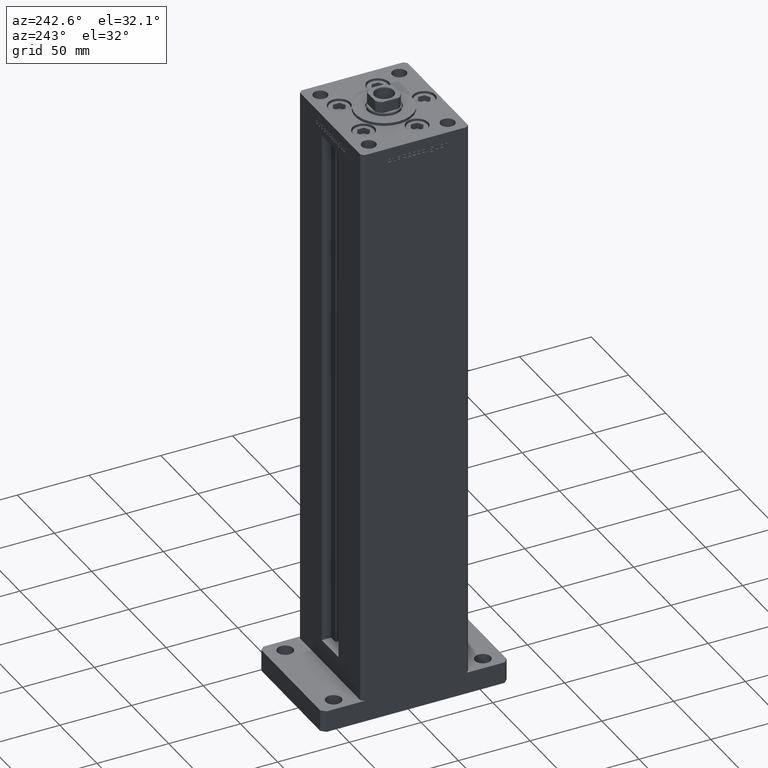
[diagram: clean part render]
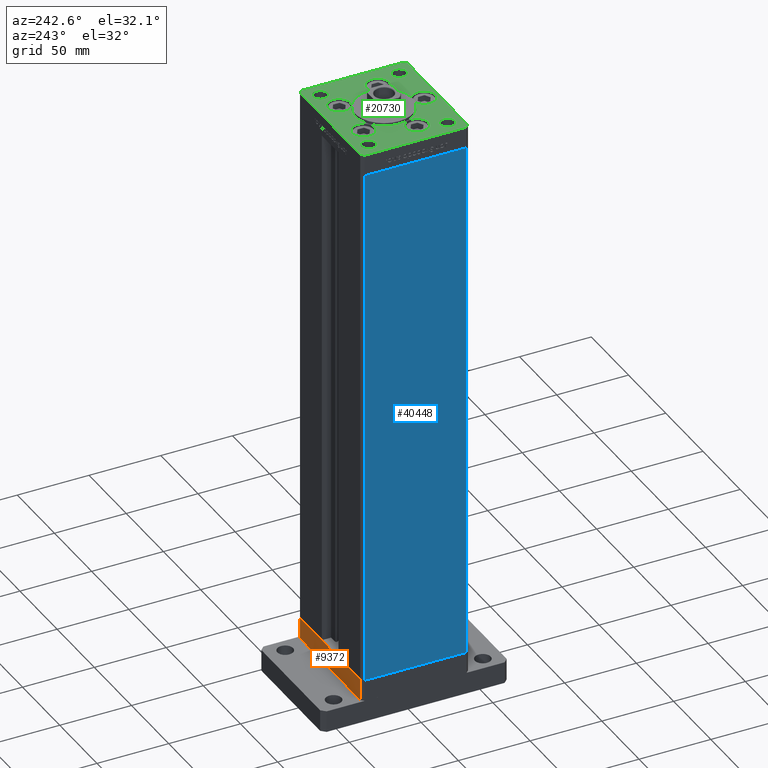
[diagram: same view with three faces highlighted in distinct colors, each labeled with its STEP entity id]
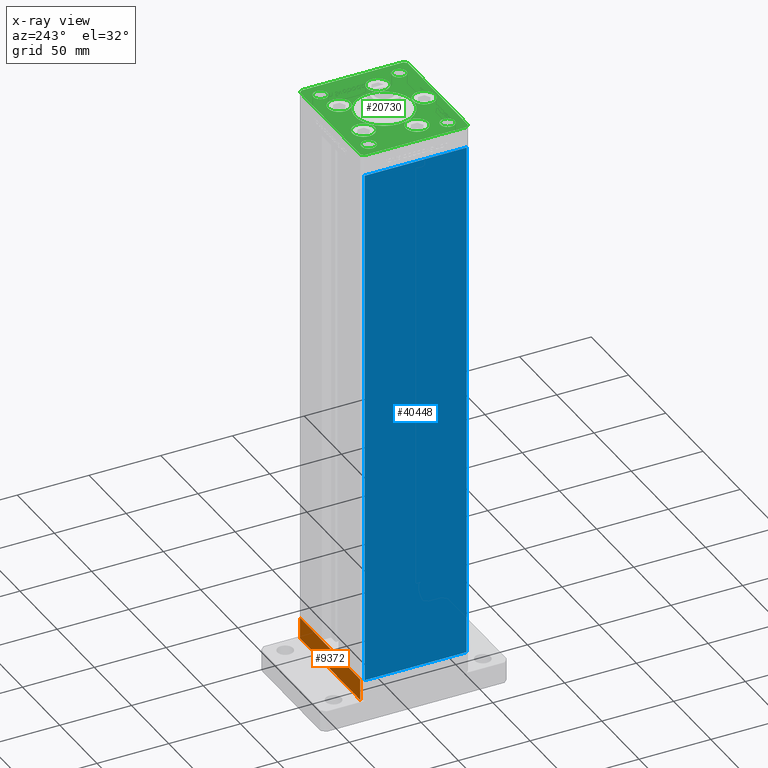
[diagram: x-ray of the same camera — body ghosted, the three highlighted faces saturated]
A machine part, auxiliary view with three faces highlighted in distinct colors.
The next image is the same camera in x-ray (body ghosted, the three faces saturated) — at least one of them is partly hidden behind the body in this view.
Their STEP definitions:

[orange] entity #9372 — the highlighted planar face has unit normal (0, 1, 0).
#1192 = DIRECTION ( 'NONE',  ( -1.000000000000000000, -3.426614273534436165E-16, 0.000000000000000000 ) ) ;
#2602 = EDGE_CURVE ( 'NONE', #24854, #33634, #38947, .T. ) ;
#3038 = ORIENTED_EDGE ( 'NONE', *, *, #2602, .T. ) ;
#5303 = CARTESIAN_POINT ( 'NONE',  ( -40.50000000000000711, 37.49999999999997868, 0.000000000000000000 ) ) ;
#8861 = LINE ( 'NONE', #17269, #35515 ) ;
#9372 = ADVANCED_FACE ( 'NONE', ( #9737 ), #26295, .T. ) ;
#9737 = FACE_OUTER_BOUND ( 'NONE', #28878, .T. ) ;
#10970 = EDGE_CURVE ( 'NONE', #33634, #48000, #8861, .T. ) ;
#12358 = CARTESIAN_POINT ( 'NONE',  ( -40.50000000000000711, 37.49999999999997868, -15.00000000000000000 ) ) ;
#12738 = CARTESIAN_POINT ( 'NONE',  ( 40.49999999999991473, 37.50000000000000711, 0.000000000000000000 ) ) ;
#13945 = EDGE_CURVE ( 'NONE', #24854, #21960, #18647, .T. ) ;
#16267 = ORIENTED_EDGE ( 'NONE', *, *, #45103, .F. ) ;
#17269 = CARTESIAN_POINT ( 'NONE',  ( -40.50000000000000711, 37.49999999999997868, -15.00000000000000000 ) ) ;
#18647 = LINE ( 'NONE', #34415, #31278 ) ;
#18718 = CARTESIAN_POINT ( 'NONE',  ( 40.49999999999991473, 37.50000000000000711, 0.000000000000000000 ) ) ;
#21960 = VERTEX_POINT ( 'NONE', #18718 ) ;
#23282 = CARTESIAN_POINT ( 'NONE',  ( 40.49999999999991473, 37.50000000000000711, -15.00000000000000000 ) ) ;
#24854 = VERTEX_POINT ( 'NONE', #33017 ) ;
#25817 = VECTOR ( 'NONE', #1192, 1000.000000000000000 ) ;
#26295 = PLANE ( 'NONE',  #47629 ) ;
#26431 = CARTESIAN_POINT ( 'NONE',  ( 40.49999999999991473, 37.50000000000000711, -15.00000000000000000 ) ) ;
#27367 = DIRECTION ( 'NONE',  ( -3.426614273534436165E-16, 1.000000000000000000, 0.000000000000000000 ) ) ;
#28878 = EDGE_LOOP ( 'NONE', ( #16267, #45212, #3038, #33238 ) ) ;
#30880 = DIRECTION ( 'NONE',  ( 0.000000000000000000, 0.000000000000000000, 1.000000000000000000 ) ) ;
#31278 = VECTOR ( 'NONE', #30880, 1000.000000000000000 ) ;
#31718 = DIRECTION ( 'NONE',  ( -1.000000000000000000, -3.426614273534436165E-16, 0.000000000000000000 ) ) ;
#33017 = CARTESIAN_POINT ( 'NONE',  ( 40.49999999999991473, 37.50000000000000711, -15.00000000000000000 ) ) ;
#33071 = VECTOR ( 'NONE', #33920, 1000.000000000000000 ) ;
#33121 = LINE ( 'NONE', #12738, #33071 ) ;
#33238 = ORIENTED_EDGE ( 'NONE', *, *, #10970, .T. ) ;
#33583 = DIRECTION ( 'NONE',  ( 0.000000000000000000, 0.000000000000000000, 1.000000000000000000 ) ) ;
#33634 = VERTEX_POINT ( 'NONE', #12358 ) ;
#33920 = DIRECTION ( 'NONE',  ( -1.000000000000000000, -3.426614273534436165E-16, 0.000000000000000000 ) ) ;
#34415 = CARTESIAN_POINT ( 'NONE',  ( 40.49999999999991473, 37.50000000000000711, -15.00000000000000000 ) ) ;
#35515 = VECTOR ( 'NONE', #33583, 1000.000000000000000 ) ;
#38947 = LINE ( 'NONE', #26431, #25817 ) ;
#45103 = EDGE_CURVE ( 'NONE', #21960, #48000, #33121, .T. ) ;
#45212 = ORIENTED_EDGE ( 'NONE', *, *, #13945, .F. ) ;
#47629 = AXIS2_PLACEMENT_3D ( 'NONE', #23282, #27367, #31718 ) ;
#48000 = VERTEX_POINT ( 'NONE', #5303 ) ;

[blue] entity #40448 — the highlighted planar face has unit normal (1, 0, 0).
#121 = VECTOR ( 'NONE', #31527, 1000.000000000000000 ) ;
#2271 = DIRECTION ( 'NONE',  ( -2.931927001650941360E-16, 1.000000000000000000, 0.000000000000000000 ) ) ;
#5112 = VECTOR ( 'NONE', #33444, 1000.000000000000000 ) ;
#5169 = ORIENTED_EDGE ( 'NONE', *, *, #10445, .T. ) ;
#5365 = LINE ( 'NONE', #37968, #13023 ) ;
#6359 = CARTESIAN_POINT ( 'NONE',  ( -42.50000000000000711, 35.50000000000001421, 368.5000000000000000 ) ) ;
#10422 = DIRECTION ( 'NONE',  ( 1.000000000000000000, 2.931927001650941360E-16, -0.000000000000000000 ) ) ;
#10445 = EDGE_CURVE ( 'NONE', #43367, #37976, #12528, .T. ) ;
#12528 = LINE ( 'NONE', #29088, #5112 ) ;
#13023 = VECTOR ( 'NONE', #29809, 1000.000000000000000 ) ;
#13440 = ORIENTED_EDGE ( 'NONE', *, *, #41231, .F. ) ;
#15358 = CARTESIAN_POINT ( 'NONE',  ( -42.49999999999998579, -35.50000000000000711, 368.5000000000000000 ) ) ;
#17939 = LINE ( 'NONE', #33449, #23255 ) ;
#21398 = CARTESIAN_POINT ( 'NONE',  ( -42.50000000000000711, 35.50000000000001421, 0.000000000000000000 ) ) ;
#21468 = DIRECTION ( 'NONE',  ( -0.000000000000000000, -0.000000000000000000, -1.000000000000000000 ) ) ;
#23255 = VECTOR ( 'NONE', #21468, 1000.000000000000000 ) ;
#24601 = ORIENTED_EDGE ( 'NONE', *, *, #45727, .T. ) ;
#25477 = ORIENTED_EDGE ( 'NONE', *, *, #31482, .F. ) ;
#27459 = EDGE_LOOP ( 'NONE', ( #5169, #25477, #13440, #24601 ) ) ;
#28857 = CARTESIAN_POINT ( 'NONE',  ( -42.49999999999998579, -35.50000000000000711, 0.000000000000000000 ) ) ;
#29088 = CARTESIAN_POINT ( 'NONE',  ( -42.50000000000000711, 35.50000000000001421, 0.000000000000000000 ) ) ;
#29809 = DIRECTION ( 'NONE',  ( 2.931927001650941360E-16, -1.000000000000000000, 0.000000000000000000 ) ) ;
#30804 = PLANE ( 'NONE',  #35522 ) ;
#31482 = EDGE_CURVE ( 'NONE', #46213, #37976, #17939, .T. ) ;
#31527 = DIRECTION ( 'NONE',  ( -0.000000000000000000, -0.000000000000000000, -1.000000000000000000 ) ) ;
#31795 = CARTESIAN_POINT ( 'NONE',  ( -42.50000000000000711, 35.50000000000001421, 368.5000000000000000 ) ) ;
#33444 = DIRECTION ( 'NONE',  ( 2.931927001650941360E-16, -1.000000000000000000, 0.000000000000000000 ) ) ;
#33449 = CARTESIAN_POINT ( 'NONE',  ( -42.49999999999998579, -35.50000000000000711, 368.5000000000000000 ) ) ;
#33679 = VERTEX_POINT ( 'NONE', #36020 ) ;
#35522 = AXIS2_PLACEMENT_3D ( 'NONE', #6359, #10422, #2271 ) ;
#35884 = LINE ( 'NONE', #31795, #121 ) ;
#36020 = CARTESIAN_POINT ( 'NONE',  ( -42.50000000000000711, 35.50000000000001421, 368.5000000000000000 ) ) ;
#37968 = CARTESIAN_POINT ( 'NONE',  ( -42.50000000000000711, 35.50000000000001421, 368.5000000000000000 ) ) ;
#37976 = VERTEX_POINT ( 'NONE', #28857 ) ;
#40448 = ADVANCED_FACE ( 'NONE', ( #42790 ), #30804, .F. ) ;
#41231 = EDGE_CURVE ( 'NONE', #33679, #46213, #5365, .T. ) ;
#42790 = FACE_OUTER_BOUND ( 'NONE', #27459, .T. ) ;
#43367 = VERTEX_POINT ( 'NONE', #21398 ) ;
#45727 = EDGE_CURVE ( 'NONE', #33679, #43367, #35884, .T. ) ;
#46213 = VERTEX_POINT ( 'NONE', #15358 ) ;

[green] entity #20730 — the highlighted planar face has unit normal (0, 0, 1).
#278 = AXIS2_PLACEMENT_3D ( 'NONE', #16672, #16407, #12346 ) ;
#698 = CIRCLE ( 'NONE', #29335, 7.750000000000000000 ) ;
#836 = DIRECTION ( 'NONE',  ( 1.000000000000000000, 0.000000000000000000, 0.000000000000000000 ) ) ;
#878 = VERTEX_POINT ( 'NONE', #32452 ) ;
#1237 = LINE ( 'NONE', #5307, #51383 ) ;
#1676 = LINE ( 'NONE', #10094, #43332 ) ;
#1740 = EDGE_LOOP ( 'NONE', ( #31873, #3050 ) ) ;
#1878 = ORIENTED_EDGE ( 'NONE', *, *, #25532, .F. ) ;
#1903 = DIRECTION ( 'NONE',  ( 1.000000000000000000, 0.000000000000000000, 0.000000000000000000 ) ) ;
#2275 = CARTESIAN_POINT ( 'NONE',  ( 0.000000000000000000, 0.000000000000000000, 0.000000000000000000 ) ) ;
#2373 = DIRECTION ( 'NONE',  ( -1.000000000000000000, 0.000000000000000000, 0.000000000000000000 ) ) ;
#2723 = VERTEX_POINT ( 'NONE', #18814 ) ;
#3050 = ORIENTED_EDGE ( 'NONE', *, *, #9575, .F. ) ;
#3257 = EDGE_CURVE ( 'NONE', #21687, #11462, #32688, .T. ) ;
#3383 = VECTOR ( 'NONE', #38547, 1000.000000000000000 ) ;
#3387 = VECTOR ( 'NONE', #44591, 1000.000000000000000 ) ;
#3417 = DIRECTION ( 'NONE',  ( 1.000000000000000000, 0.000000000000000000, 0.000000000000000000 ) ) ;
#3555 = CIRCLE ( 'NONE', #13093, 7.750000000000000000 ) ;
#3634 = EDGE_CURVE ( 'NONE', #29202, #31148, #21382, .T. ) ;
#4021 = DIRECTION ( 'NONE',  ( 0.000000000000000000, 0.000000000000000000, 1.000000000000000000 ) ) ;
#4181 = EDGE_CURVE ( 'NONE', #11182, #2723, #8397, .T. ) ;
#4183 = VECTOR ( 'NONE', #27494, 1000.000000000000000 ) ;
#4187 = EDGE_CURVE ( 'NONE', #22725, #14763, #23996, .T. ) ;
#4695 = VERTEX_POINT ( 'NONE', #12569 ) ;
#4753 = ORIENTED_EDGE ( 'NONE', *, *, #35452, .T. ) ;
#4902 = DIRECTION ( 'NONE',  ( 0.000000000000000000, 0.000000000000000000, 1.000000000000000000 ) ) ;
#5249 = DIRECTION ( 'NONE',  ( 0.000000000000000000, 0.000000000000000000, 1.000000000000000000 ) ) ;
#5307 = CARTESIAN_POINT ( 'NONE',  ( -42.50000000000000711, 35.50000000000000000, 0.000000000000000000 ) ) ;
#5776 = AXIS2_PLACEMENT_3D ( 'NONE', #41844, #17079, #50518 ) ;
#6363 = FACE_BOUND ( 'NONE', #41171, .T. ) ;
#6843 = EDGE_CURVE ( 'NONE', #18055, #14293, #698, .T. ) ;
#6889 = DIRECTION ( 'NONE',  ( 1.000000000000000000, 0.000000000000000000, 0.000000000000000000 ) ) ;
#6969 = DIRECTION ( 'NONE',  ( 1.000000000000000000, 0.000000000000000000, 0.000000000000000000 ) ) ;
#7021 = EDGE_CURVE ( 'NONE', #14293, #18055, #14563, .T. ) ;
#7429 = DIRECTION ( 'NONE',  ( 0.000000000000000000, 0.000000000000000000, 1.000000000000000000 ) ) ;
#7646 = CIRCLE ( 'NONE', #21498, 5.000000000000000888 ) ;
#7745 = EDGE_CURVE ( 'NONE', #37833, #40797, #7646, .T. ) ;
#7788 = DIRECTION ( 'NONE',  ( 1.000000000000000000, 0.000000000000000000, 0.000000000000000000 ) ) ;
#8013 = CIRCLE ( 'NONE', #10614, 4.999999999999997335 ) ;
#8077 = DIRECTION ( 'NONE',  ( 1.000000000000000000, 0.000000000000000000, 0.000000000000000000 ) ) ;
#8397 = CIRCLE ( 'NONE', #38786, 4.999999999999997335 ) ;
#8539 = VERTEX_POINT ( 'NONE', #21078 ) ;
#9575 = EDGE_CURVE ( 'NONE', #19571, #878, #45918, .T. ) ;
#9651 = DIRECTION ( 'NONE',  ( 0.000000000000000000, 0.000000000000000000, 1.000000000000000000 ) ) ;
#10094 = CARTESIAN_POINT ( 'NONE',  ( 40.50000000000001421, -37.49999999999992184, 0.000000000000000000 ) ) ;
#10327 = DIRECTION ( 'NONE',  ( 0.000000000000000000, 0.000000000000000000, 1.000000000000000000 ) ) ;
#10348 = DIRECTION ( 'NONE',  ( 0.000000000000000000, 0.000000000000000000, 1.000000000000000000 ) ) ;
#10559 = DIRECTION ( 'NONE',  ( -1.000000000000000000, 0.000000000000000000, 0.000000000000000000 ) ) ;
#10614 = AXIS2_PLACEMENT_3D ( 'NONE', #33347, #16483, #12425 ) ;
#10670 = CARTESIAN_POINT ( 'NONE',  ( -42.50000000000000000, -35.50000000000004263, 0.000000000000000000 ) ) ;
#11170 = CARTESIAN_POINT ( 'NONE',  ( -37.50000000000000711, -27.50000000000000355, 0.000000000000000000 ) ) ;
#11182 = VERTEX_POINT ( 'NONE', #37329 ) ;
#11462 = VERTEX_POINT ( 'NONE', #15275 ) ;
#11693 = LINE ( 'NONE', #28251, #3387 ) ;
#12087 = ORIENTED_EDGE ( 'NONE', *, *, #7745, .F. ) ;
#12318 = AXIS2_PLACEMENT_3D ( 'NONE', #50562, #4902, #1903 ) ;
#12346 = DIRECTION ( 'NONE',  ( 1.000000000000000000, 0.000000000000000000, 0.000000000000000000 ) ) ;
#12425 = DIRECTION ( 'NONE',  ( -1.000000000000000000, 0.000000000000000000, 0.000000000000000000 ) ) ;
#12499 = VERTEX_POINT ( 'NONE', #29175 ) ;
#12569 = CARTESIAN_POINT ( 'NONE',  ( 40.50000000000000711, 37.50000000000000711, 0.000000000000000000 ) ) ;
#13093 = AXIS2_PLACEMENT_3D ( 'NONE', #38672, #5249, #18002 ) ;
#13346 = DIRECTION ( 'NONE',  ( 0.000000000000000000, 0.000000000000000000, 1.000000000000000000 ) ) ;
#13588 = CARTESIAN_POINT ( 'NONE',  ( 0.000000000000000000, -28.00000000000000000, 0.000000000000000000 ) ) ;
#13717 = CARTESIAN_POINT ( 'NONE',  ( 0.000000000000000000, -28.00000000000000000, 0.000000000000000000 ) ) ;
#14293 = VERTEX_POINT ( 'NONE', #45533 ) ;
#14409 = DIRECTION ( 'NONE',  ( 1.000000000000000000, 0.000000000000000000, 0.000000000000000000 ) ) ;
#14563 = CIRCLE ( 'NONE', #23243, 7.750000000000000000 ) ;
#14756 = DIRECTION ( 'NONE',  ( 1.000000000000000000, 0.000000000000000000, 0.000000000000000000 ) ) ;
#14763 = VERTEX_POINT ( 'NONE', #27208 ) ;
#14823 = CIRCLE ( 'NONE', #47816, 20.00000000000000000 ) ;
#15037 = FACE_BOUND ( 'NONE', #44538, .T. ) ;
#15103 = CARTESIAN_POINT ( 'NONE',  ( -18.64865316429777664, -9.333333333333330373, 0.000000000000000000 ) ) ;
#15275 = CARTESIAN_POINT ( 'NONE',  ( 37.50000000000000000, -27.50000000000000355, 0.000000000000000000 ) ) ;
#15414 = VERTEX_POINT ( 'NONE', #17660 ) ;
#15570 = FACE_BOUND ( 'NONE', #1740, .T. ) ;
#15897 = CARTESIAN_POINT ( 'NONE',  ( 8.572913342905442491, 22.74999999999999289, 0.000000000000000000 ) ) ;
#15920 = AXIS2_PLACEMENT_3D ( 'NONE', #41270, #4021, #20584 ) ;
#16407 = DIRECTION ( 'NONE',  ( 0.000000000000000000, 0.000000000000000000, 1.000000000000000000 ) ) ;
#16483 = DIRECTION ( 'NONE',  ( -0.000000000000000000, -0.000000000000000000, -1.000000000000000000 ) ) ;
#16672 = CARTESIAN_POINT ( 'NONE',  ( 16.32291334290544071, 22.74999999999999289, 0.000000000000000000 ) ) ;
#16959 = ORIENTED_EDGE ( 'NONE', *, *, #18655, .T. ) ;
#17079 = DIRECTION ( 'NONE',  ( -0.000000000000000000, -0.000000000000000000, -1.000000000000000000 ) ) ;
#17310 = ORIENTED_EDGE ( 'NONE', *, *, #4187, .F. ) ;
#17660 = CARTESIAN_POINT ( 'NONE',  ( -8.572913342905440715, 22.74999999999999289, 0.000000000000000000 ) ) ;
#17661 = ORIENTED_EDGE ( 'NONE', *, *, #29631, .F. ) ;
#17679 = CARTESIAN_POINT ( 'NONE',  ( -27.50000000000000000, 27.50000000000000711, 0.000000000000000000 ) ) ;
#17716 = ORIENTED_EDGE ( 'NONE', *, *, #33143, .T. ) ;
#17739 = EDGE_CURVE ( 'NONE', #46205, #4695, #19143, .T. ) ;
#18002 = DIRECTION ( 'NONE',  ( 1.000000000000000000, 0.000000000000000000, 0.000000000000000000 ) ) ;
#18054 = DIRECTION ( 'NONE',  ( 9.773090005503134168E-17, -1.000000000000000000, 0.000000000000000000 ) ) ;
#18055 = VERTEX_POINT ( 'NONE', #50692 ) ;
#18329 = DIRECTION ( 'NONE',  ( 1.000000000000000000, 0.000000000000000000, 0.000000000000000000 ) ) ;
#18655 = EDGE_CURVE ( 'NONE', #39402, #28089, #44021, .T. ) ;
#18710 = EDGE_CURVE ( 'NONE', #46263, #35693, #23473, .T. ) ;
#18814 = CARTESIAN_POINT ( 'NONE',  ( 27.50000000000000355, 27.49999999999999645, 0.000000000000000000 ) ) ;
#19027 = CARTESIAN_POINT ( 'NONE',  ( 32.50000000000000000, 27.49999999999999645, 0.000000000000000000 ) ) ;
#19143 = LINE ( 'NONE', #22681, #51347 ) ;
#19311 = EDGE_CURVE ( 'NONE', #51941, #15414, #3555, .T. ) ;
#19448 = CIRCLE ( 'NONE', #49836, 4.999999999999997335 ) ;
#19571 = VERTEX_POINT ( 'NONE', #30714 ) ;
#19603 = ORIENTED_EDGE ( 'NONE', *, *, #50269, .F. ) ;
#19635 = EDGE_CURVE ( 'NONE', #878, #19571, #14823, .T. ) ;
#19921 = FACE_BOUND ( 'NONE', #32295, .T. ) ;
#20584 = DIRECTION ( 'NONE',  ( 1.000000000000000000, 0.000000000000000000, 0.000000000000000000 ) ) ;
#20605 = DIRECTION ( 'NONE',  ( 9.773090005503145261E-17, 1.000000000000000000, 0.000000000000000000 ) ) ;
#20730 = ADVANCED_FACE ( 'NONE', ( #15570, #23171, #39774, #19921, #31066, #15037, #47661, #6363, #22909, #27529, #39505 ), #23442, .T. ) ;
#21078 = CARTESIAN_POINT ( 'NONE',  ( 40.50000000000001421, -37.49999999999992184, 0.000000000000000000 ) ) ;
#21202 = ORIENTED_EDGE ( 'NONE', *, *, #18710, .F. ) ;
#21252 = ORIENTED_EDGE ( 'NONE', *, *, #22186, .T. ) ;
#21299 = VERTEX_POINT ( 'NONE', #28666 ) ;
#21382 = CIRCLE ( 'NONE', #46583, 7.750000000000000000 ) ;
#21498 = AXIS2_PLACEMENT_3D ( 'NONE', #43618, #44156, #18329 ) ;
#21687 = VERTEX_POINT ( 'NONE', #48688 ) ;
#21945 = CARTESIAN_POINT ( 'NONE',  ( -40.50000000000000711, -37.50000000000003553, 0.000000000000000000 ) ) ;
#22186 = EDGE_CURVE ( 'NONE', #28089, #24332, #1237, .T. ) ;
#22535 = EDGE_LOOP ( 'NONE', ( #4753, #27669, #34681, #35043, #45325, #17716, #16959, #21252 ) ) ;
#22681 = CARTESIAN_POINT ( 'NONE',  ( 42.50000000000001421, 35.50000000000002132, 0.000000000000000000 ) ) ;
#22725 = VERTEX_POINT ( 'NONE', #41343 ) ;
#22756 = EDGE_CURVE ( 'NONE', #40797, #37833, #31385, .T. ) ;
#22767 = CARTESIAN_POINT ( 'NONE',  ( -24.07291334290544071, 22.74999999999999289, 0.000000000000000000 ) ) ;
#22799 = EDGE_CURVE ( 'NONE', #31148, #29202, #40963, .T. ) ;
#22909 = FACE_BOUND ( 'NONE', #41876, .T. ) ;
#23171 = FACE_BOUND ( 'NONE', #53580, .T. ) ;
#23243 = AXIS2_PLACEMENT_3D ( 'NONE', #13588, #46217, #33698 ) ;
#23442 = PLANE ( 'NONE',  #25295 ) ;
#23473 = CIRCLE ( 'NONE', #50376, 7.750000000000000000 ) ;
#23547 = ORIENTED_EDGE ( 'NONE', *, *, #4181, .F. ) ;
#23799 = EDGE_CURVE ( 'NONE', #11462, #21687, #8013, .T. ) ;
#23996 = CIRCLE ( 'NONE', #45731, 7.750000000000000000 ) ;
#24332 = VERTEX_POINT ( 'NONE', #36957 ) ;
#25295 = AXIS2_PLACEMENT_3D ( 'NONE', #2275, #31611, #14756 ) ;
#25532 = EDGE_CURVE ( 'NONE', #15414, #51941, #46304, .T. ) ;
#25548 = CARTESIAN_POINT ( 'NONE',  ( -26.39865316429777664, -9.333333333333330373, 0.000000000000000000 ) ) ;
#26086 = AXIS2_PLACEMENT_3D ( 'NONE', #44507, #43692, #2373 ) ;
#26210 = DIRECTION ( 'NONE',  ( 1.000000000000000000, 0.000000000000000000, 0.000000000000000000 ) ) ;
#26803 = ORIENTED_EDGE ( 'NONE', *, *, #39338, .T. ) ;
#26859 = CIRCLE ( 'NONE', #42488, 5.000000000000004441 ) ;
#26884 = DIRECTION ( 'NONE',  ( 1.000000000000000000, 0.000000000000000000, 0.000000000000000000 ) ) ;
#26997 = CARTESIAN_POINT ( 'NONE',  ( -42.50000000000000711, 35.50000000000000000, 0.000000000000000000 ) ) ;
#27208 = CARTESIAN_POINT ( 'NONE',  ( 34.14865316429777664, -9.333333333333330373, 0.000000000000000000 ) ) ;
#27418 = DIRECTION ( 'NONE',  ( -0.7071067811865536790, -0.7071067811865414665, 0.000000000000000000 ) ) ;
#27494 = DIRECTION ( 'NONE',  ( 0.7071067811865487940, -0.7071067811865463515, 0.000000000000000000 ) ) ;
#27529 = FACE_OUTER_BOUND ( 'NONE', #22535, .T. ) ;
#27669 = ORIENTED_EDGE ( 'NONE', *, *, #37068, .T. ) ;
#27680 = AXIS2_PLACEMENT_3D ( 'NONE', #42238, #28707, #8077 ) ;
#27865 = DIRECTION ( 'NONE',  ( 0.000000000000000000, 0.000000000000000000, 1.000000000000000000 ) ) ;
#28089 = VERTEX_POINT ( 'NONE', #26997 ) ;
#28251 = CARTESIAN_POINT ( 'NONE',  ( 40.50000000000000711, 37.50000000000000711, 0.000000000000000000 ) ) ;
#28552 = VERTEX_POINT ( 'NONE', #32636 ) ;
#28666 = CARTESIAN_POINT ( 'NONE',  ( 42.50000000000000711, -35.49999999999992895, 0.000000000000000000 ) ) ;
#28707 = DIRECTION ( 'NONE',  ( 0.000000000000000000, 0.000000000000000000, 1.000000000000000000 ) ) ;
#29010 = ORIENTED_EDGE ( 'NONE', *, *, #7021, .F. ) ;
#29175 = CARTESIAN_POINT ( 'NONE',  ( -37.50000000000000711, 27.50000000000000711, 0.000000000000000000 ) ) ;
#29202 = VERTEX_POINT ( 'NONE', #31658 ) ;
#29335 = AXIS2_PLACEMENT_3D ( 'NONE', #13717, #9651, #26210 ) ;
#29472 = ORIENTED_EDGE ( 'NONE', *, *, #23799, .T. ) ;
#29630 = CARTESIAN_POINT ( 'NONE',  ( 24.07291334290544071, 22.74999999999999289, 0.000000000000000000 ) ) ;
#29631 = EDGE_CURVE ( 'NONE', #2723, #11182, #19448, .T. ) ;
#30534 = ORIENTED_EDGE ( 'NONE', *, *, #22799, .F. ) ;
#30714 = CARTESIAN_POINT ( 'NONE',  ( 20.00000000000000000, -4.489600305612522259E-15, 0.000000000000000000 ) ) ;
#31066 = FACE_BOUND ( 'NONE', #37713, .T. ) ;
#31148 = VERTEX_POINT ( 'NONE', #15103 ) ;
#31236 = DIRECTION ( 'NONE',  ( 1.000000000000000000, 0.000000000000000000, 0.000000000000000000 ) ) ;
#31374 = EDGE_LOOP ( 'NONE', ( #26803, #36036 ) ) ;
#31385 = CIRCLE ( 'NONE', #12318, 5.000000000000000888 ) ;
#31601 = EDGE_CURVE ( 'NONE', #21299, #46205, #37198, .T. ) ;
#31611 = DIRECTION ( 'NONE',  ( -0.000000000000000000, 0.000000000000000000, 1.000000000000000000 ) ) ;
#31658 = CARTESIAN_POINT ( 'NONE',  ( -34.14865316429777664, -9.333333333333328596, 0.000000000000000000 ) ) ;
#31873 = ORIENTED_EDGE ( 'NONE', *, *, #19635, .F. ) ;
#32295 = EDGE_LOOP ( 'NONE', ( #46942, #17310 ) ) ;
#32452 = CARTESIAN_POINT ( 'NONE',  ( -20.00000000000000000, -6.938893903907228378E-15, 0.000000000000000000 ) ) ;
#32636 = CARTESIAN_POINT ( 'NONE',  ( -40.50000000000000711, -37.50000000000003553, 0.000000000000000000 ) ) ;
#32688 = CIRCLE ( 'NONE', #5776, 4.999999999999997335 ) ;
#33143 = EDGE_CURVE ( 'NONE', #4695, #39402, #11693, .T. ) ;
#33347 = CARTESIAN_POINT ( 'NONE',  ( 32.50000000000000000, -27.50000000000000355, 0.000000000000000000 ) ) ;
#33698 = DIRECTION ( 'NONE',  ( 1.000000000000000000, 0.000000000000000000, 0.000000000000000000 ) ) ;
#34681 = ORIENTED_EDGE ( 'NONE', *, *, #38860, .T. ) ;
#34794 = EDGE_CURVE ( 'NONE', #14763, #22725, #39728, .T. ) ;
#35043 = ORIENTED_EDGE ( 'NONE', *, *, #31601, .T. ) ;
#35305 = CARTESIAN_POINT ( 'NONE',  ( 26.39865316429777664, -9.333333333333330373, 0.000000000000000000 ) ) ;
#35355 = ORIENTED_EDGE ( 'NONE', *, *, #3634, .F. ) ;
#35452 = EDGE_CURVE ( 'NONE', #24332, #28552, #52236, .T. ) ;
#35565 = VERTEX_POINT ( 'NONE', #17679 ) ;
#35693 = VERTEX_POINT ( 'NONE', #29630 ) ;
#35771 = EDGE_LOOP ( 'NONE', ( #29472, #38630 ) ) ;
#36036 = ORIENTED_EDGE ( 'NONE', *, *, #43729, .T. ) ;
#36316 = VECTOR ( 'NONE', #20605, 1000.000000000000000 ) ;
#36957 = CARTESIAN_POINT ( 'NONE',  ( -42.50000000000000000, -35.50000000000004263, 0.000000000000000000 ) ) ;
#37068 = EDGE_CURVE ( 'NONE', #28552, #8539, #50247, .T. ) ;
#37090 = CARTESIAN_POINT ( 'NONE',  ( 26.39865316429777664, -9.333333333333330373, 0.000000000000000000 ) ) ;
#37123 = AXIS2_PLACEMENT_3D ( 'NONE', #35305, #51893, #7788 ) ;
#37198 = LINE ( 'NONE', #41292, #36316 ) ;
#37329 = CARTESIAN_POINT ( 'NONE',  ( 37.50000000000000000, 27.49999999999999645, 0.000000000000000000 ) ) ;
#37713 = EDGE_LOOP ( 'NONE', ( #49269, #29010 ) ) ;
#37833 = VERTEX_POINT ( 'NONE', #39760 ) ;
#38547 = DIRECTION ( 'NONE',  ( 1.000000000000000000, 1.370645709413773283E-15, 0.000000000000000000 ) ) ;
#38630 = ORIENTED_EDGE ( 'NONE', *, *, #3257, .T. ) ;
#38636 = DIRECTION ( 'NONE',  ( 0.7071067811865474617, 0.7071067811865474617, 0.000000000000000000 ) ) ;
#38672 = CARTESIAN_POINT ( 'NONE',  ( -16.32291334290544071, 22.74999999999999289, 0.000000000000000000 ) ) ;
#38786 = AXIS2_PLACEMENT_3D ( 'NONE', #51537, #43115, #6969 ) ;
#38860 = EDGE_CURVE ( 'NONE', #8539, #21299, #1676, .T. ) ;
#39338 = EDGE_CURVE ( 'NONE', #35565, #12499, #26859, .T. ) ;
#39402 = VERTEX_POINT ( 'NONE', #44260 ) ;
#39505 = FACE_BOUND ( 'NONE', #35771, .T. ) ;
#39728 = CIRCLE ( 'NONE', #37123, 7.750000000000000000 ) ;
#39760 = CARTESIAN_POINT ( 'NONE',  ( -27.50000000000000000, -27.50000000000000355, 0.000000000000000000 ) ) ;
#39774 = FACE_BOUND ( 'NONE', #51825, .T. ) ;
#40797 = VERTEX_POINT ( 'NONE', #11170 ) ;
#40963 = CIRCLE ( 'NONE', #50494, 7.750000000000000000 ) ;
#41171 = EDGE_LOOP ( 'NONE', ( #23547, #17661 ) ) ;
#41270 = CARTESIAN_POINT ( 'NONE',  ( -16.32291334290544071, 22.74999999999999289, 0.000000000000000000 ) ) ;
#41292 = CARTESIAN_POINT ( 'NONE',  ( 42.50000000000000711, -35.49999999999992895, 0.000000000000000000 ) ) ;
#41343 = CARTESIAN_POINT ( 'NONE',  ( 18.64865316429777664, -9.333333333333328596, 0.000000000000000000 ) ) ;
#41844 = CARTESIAN_POINT ( 'NONE',  ( 32.50000000000000000, -27.50000000000000355, 0.000000000000000000 ) ) ;
#41876 = EDGE_LOOP ( 'NONE', ( #12087, #45446 ) ) ;
#42152 = DIRECTION ( 'NONE',  ( 0.000000000000000000, 0.000000000000000000, 1.000000000000000000 ) ) ;
#42238 = CARTESIAN_POINT ( 'NONE',  ( 0.000000000000000000, -6.938893903907228378E-15, 0.000000000000000000 ) ) ;
#42488 = AXIS2_PLACEMENT_3D ( 'NONE', #46990, #51062, #10559 ) ;
#42576 = ORIENTED_EDGE ( 'NONE', *, *, #19311, .F. ) ;
#43115 = DIRECTION ( 'NONE',  ( 0.000000000000000000, 0.000000000000000000, 1.000000000000000000 ) ) ;
#43332 = VECTOR ( 'NONE', #38636, 1000.000000000000114 ) ;
#43618 = CARTESIAN_POINT ( 'NONE',  ( -32.50000000000000000, -27.50000000000000355, 0.000000000000000000 ) ) ;
#43692 = DIRECTION ( 'NONE',  ( -0.000000000000000000, -0.000000000000000000, -1.000000000000000000 ) ) ;
#43729 = EDGE_CURVE ( 'NONE', #12499, #35565, #46941, .T. ) ;
#44021 = LINE ( 'NONE', #47298, #47775 ) ;
#44156 = DIRECTION ( 'NONE',  ( 0.000000000000000000, 0.000000000000000000, 1.000000000000000000 ) ) ;
#44260 = CARTESIAN_POINT ( 'NONE',  ( -40.50000000000000000, 37.49999999999997158, 0.000000000000000000 ) ) ;
#44507 = CARTESIAN_POINT ( 'NONE',  ( -32.50000000000000000, 27.50000000000000711, 0.000000000000000000 ) ) ;
#44538 = EDGE_LOOP ( 'NONE', ( #30534, #35355 ) ) ;
#44591 = DIRECTION ( 'NONE',  ( -1.000000000000000000, -4.283267841918041508E-16, 0.000000000000000000 ) ) ;
#44913 = CARTESIAN_POINT ( 'NONE',  ( -26.39865316429777664, -9.333333333333330373, 0.000000000000000000 ) ) ;
#45325 = ORIENTED_EDGE ( 'NONE', *, *, #17739, .T. ) ;
#45446 = ORIENTED_EDGE ( 'NONE', *, *, #22756, .F. ) ;
#45533 = CARTESIAN_POINT ( 'NONE',  ( -7.750000000000000000, -28.00000000000000000, 0.000000000000000000 ) ) ;
#45731 = AXIS2_PLACEMENT_3D ( 'NONE', #37090, #27865, #3417 ) ;
#45918 = CIRCLE ( 'NONE', #27680, 20.00000000000000000 ) ;
#46205 = VERTEX_POINT ( 'NONE', #52593 ) ;
#46217 = DIRECTION ( 'NONE',  ( 0.000000000000000000, 0.000000000000000000, 1.000000000000000000 ) ) ;
#46263 = VERTEX_POINT ( 'NONE', #15897 ) ;
#46304 = CIRCLE ( 'NONE', #15920, 7.750000000000000000 ) ;
#46583 = AXIS2_PLACEMENT_3D ( 'NONE', #44913, #7429, #6889 ) ;
#46941 = CIRCLE ( 'NONE', #26086, 5.000000000000004441 ) ;
#46942 = ORIENTED_EDGE ( 'NONE', *, *, #34794, .F. ) ;
#46990 = CARTESIAN_POINT ( 'NONE',  ( -32.50000000000000000, 27.50000000000000711, 0.000000000000000000 ) ) ;
#47298 = CARTESIAN_POINT ( 'NONE',  ( -40.50000000000000000, 37.49999999999997158, 0.000000000000000000 ) ) ;
#47558 = CARTESIAN_POINT ( 'NONE',  ( 16.32291334290544071, 22.74999999999999289, 0.000000000000000000 ) ) ;
#47661 = FACE_BOUND ( 'NONE', #31374, .T. ) ;
#47775 = VECTOR ( 'NONE', #27418, 1000.000000000000000 ) ;
#47816 = AXIS2_PLACEMENT_3D ( 'NONE', #50577, #13346, #31236 ) ;
#48688 = CARTESIAN_POINT ( 'NONE',  ( 27.50000000000000355, -27.50000000000000355, 0.000000000000000000 ) ) ;
#48767 = CIRCLE ( 'NONE', #278, 7.750000000000000000 ) ;
#49269 = ORIENTED_EDGE ( 'NONE', *, *, #6843, .F. ) ;
#49836 = AXIS2_PLACEMENT_3D ( 'NONE', #19027, #10348, #14409 ) ;
#50247 = LINE ( 'NONE', #21945, #3383 ) ;
#50269 = EDGE_CURVE ( 'NONE', #35693, #46263, #48767, .T. ) ;
#50376 = AXIS2_PLACEMENT_3D ( 'NONE', #47558, #10327, #26884 ) ;
#50494 = AXIS2_PLACEMENT_3D ( 'NONE', #25548, #42152, #836 ) ;
#50518 = DIRECTION ( 'NONE',  ( -1.000000000000000000, 0.000000000000000000, 0.000000000000000000 ) ) ;
#50562 = CARTESIAN_POINT ( 'NONE',  ( -32.50000000000000000, -27.50000000000000355, 0.000000000000000000 ) ) ;
#50577 = CARTESIAN_POINT ( 'NONE',  ( 0.000000000000000000, -6.938893903907228378E-15, 0.000000000000000000 ) ) ;
#50692 = CARTESIAN_POINT ( 'NONE',  ( 7.750000000000000000, -28.00000000000000000, 0.000000000000000000 ) ) ;
#51062 = DIRECTION ( 'NONE',  ( -0.000000000000000000, -0.000000000000000000, -1.000000000000000000 ) ) ;
#51347 = VECTOR ( 'NONE', #52309, 1000.000000000000000 ) ;
#51383 = VECTOR ( 'NONE', #18054, 1000.000000000000000 ) ;
#51537 = CARTESIAN_POINT ( 'NONE',  ( 32.50000000000000000, 27.49999999999999645, 0.000000000000000000 ) ) ;
#51825 = EDGE_LOOP ( 'NONE', ( #19603, #21202 ) ) ;
#51893 = DIRECTION ( 'NONE',  ( 0.000000000000000000, 0.000000000000000000, 1.000000000000000000 ) ) ;
#51941 = VERTEX_POINT ( 'NONE', #22767 ) ;
#52236 = LINE ( 'NONE', #10670, #4183 ) ;
#52309 = DIRECTION ( 'NONE',  ( -0.7071067811865524577, 0.7071067811865426878, 0.000000000000000000 ) ) ;
#52593 = CARTESIAN_POINT ( 'NONE',  ( 42.50000000000001421, 35.50000000000002132, 0.000000000000000000 ) ) ;
#53580 = EDGE_LOOP ( 'NONE', ( #1878, #42576 ) ) ;